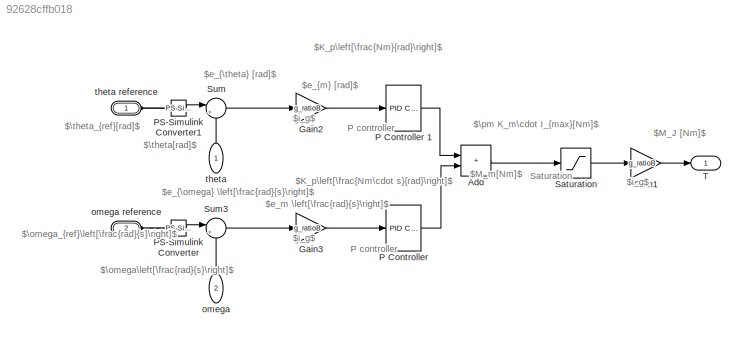
MODEL slx_92628cffb018
KIND model
CONFIG AbsTol = auto
CONFIG EnableMultiTasking = off
CONFIG FixedStep = auto
CONFIG MaxStep = auto
CONFIG MinStep = auto
CONFIG RelTol = 1e-3
CONFIG SampleTimeConstraint = Unconstrained
CONFIG SolverName = VariableStepAuto
CONFIG StartTime = 0.0
CONFIG StopTime = 10.0
BLOCK [Sum] Add
  IconShape = rectangular
  Ports = [2, 1]
BLOCK [Gain] Gain1
  Gain = g_ratioB
BLOCK [Gain] Gain2
  Gain = g_ratioB
BLOCK [Gain] Gain3
  Gain = g_ratioB
BLOCK [Reference] P Controller   REF=slpidlib/PID Controller
  Ports = [1, 1]
  SourceBlock = slpidlib/PID Controller
  SourceProductBaseCode = SL
  SourceType = PID 1dof
BLOCK [Reference] P Controller 1  REF=slpidlib/PID Controller
  Ports = [1, 1]
  SourceBlock = slpidlib/PID Controller
  SourceProductBaseCode = SL
  SourceType = PID 1dof
BLOCK [Reference] PS-Simulink Converter  REF=nesl_utility/PS-Simulink
Converter
  Ports = [0, 1, 0, 0, 0, 1]
  SourceBlock = nesl_utility/PS-Simulink\nConverter
  SourceProductBaseCode = SS,PW,VE
  SourceType = PS-Simulink\nConverter
BLOCK [Reference] PS-Simulink Converter1  REF=nesl_utility/PS-Simulink
Converter
  Ports = [0, 1, 0, 0, 0, 1]
  SourceBlock = nesl_utility/PS-Simulink\nConverter
  SourceProductBaseCode = SS,PW,VE
  SourceType = PS-Simulink\nConverter
BLOCK [Saturate] Saturation
  LowerLimit = -I_max*KmB
  UpperLimit = I_max*KmB
  ZeroCross = off
BLOCK [Sum] Sum
  Inputs = |+-
  Ports = [2, 1]
BLOCK [Sum] Sum3
  Inputs = |+-
  Ports = [2, 1]
BLOCK [Outport] T
BLOCK [Inport] omega
  NameLocation = right
  Port = 2
BLOCK [PMIOPort] omega reference
  Port = 2
  Side = Left
BLOCK [Inport] theta
  NameLocation = right
BLOCK [PMIOPort] theta reference
  Side = Left
ANNOTATION (root): P controller
ANNOTATION (root): Saturation
ANNOTATION (root): $M_m[Nm]$
ANNOTATION (root): $K_p\left[\frac{Nm\cdot s}{rad}\right]$
ANNOTATION (root): $K_p\left[\frac{Nm}{rad}\right]$
ANNOTATION (root): $M_J [Nm]$
ANNOTATION (root): $\omega\left[\frac{rad}{s}\right]$
ANNOTATION (root): $\omega_{ref}\left[\frac{rad}{s}\right]$
ANNOTATION (root): $\pm K_m\cdot I_{max}[Nm]$
ANNOTATION (root): $\theta[rad]$
ANNOTATION (root): $\theta_{ref}[rad]$
ANNOTATION (root): $e_m \left[\frac{rad}{s}\right]$
ANNOTATION (root): $e_{\omega} \left[\frac{rad}{s}\right]$
ANNOTATION (root): $e_{\theta} [rad]$
ANNOTATION (root): $e_{m} [rad]$
ANNOTATION (root): $i_g$
LINE Add:1 -> Saturation:1
LINE Gain1:1 -> T:1
LINE Gain2:1 -> P Controller 1:1
LINE Gain3:1 -> P Controller :1
LINE P Controller 1:1 -> Add:1
LINE P Controller :1 -> Add:2
LINE PS-Simulink Converter1:1 -> Sum:1
LINE PS-Simulink Converter:1 -> Sum3:1
LINE Saturation:1 -> Gain1:1
LINE Sum3:1 -> Gain3:1
LINE Sum:1 -> Gain2:1
LINE omega:1 -> Sum3:2
LINE theta:1 -> Sum:2
PLINE PS-Simulink Converter1:LConn1 -- theta reference:RConn1
PLINE PS-Simulink Converter:LConn1 -- omega reference:RConn1
